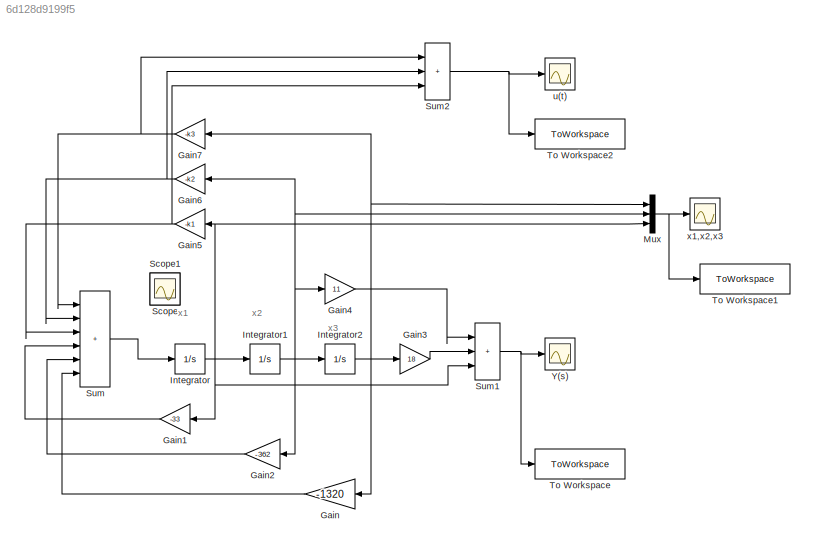
MODEL slx_6d128d9199f5
KIND model
CONFIG AbsTol = auto
CONFIG EnableMultiTasking = off
CONFIG FixedStep = auto
CONFIG MaxStep = auto
CONFIG MinStep = auto
CONFIG RelTol = 1e-3
CONFIG SampleTimeConstraint = Unconstrained
CONFIG SolverName = VariableStepAuto
CONFIG StartTime = 0.0
CONFIG StopTime = 15
BLOCK [Gain] Gain
  Gain = -1320
  NameLocation = top
BLOCK [Gain] Gain1
  Gain = -33
  NameLocation = top
BLOCK [Gain] Gain2
  Gain = -362
  NameLocation = top
BLOCK [Gain] Gain3
  Gain = 18
BLOCK [Gain] Gain4
  Gain = 11
BLOCK [Gain] Gain5
  Gain = -k1
  NameLocation = top
BLOCK [Gain] Gain6
  Gain = -k2
  NameLocation = top
BLOCK [Gain] Gain7
  Gain = -k3
  NameLocation = top
BLOCK [Integrator] Integrator
  InitialCondition = 3
  Ports = [1, 1]
BLOCK [Integrator] Integrator1
  InitialCondition = 2
  Ports = [1, 1]
BLOCK [Integrator] Integrator2
  InitialCondition = -3
  Ports = [1, 1]
BLOCK [Mux] Mux
  DisplayOption = bar
  Inputs = 3
  Ports = [3, 1]
BLOCK [Scope] Scope
  Floating = off
  IOType = viewer
  NumInputPorts = 1
  Ports = []
  ScopeSpecificationString = Simulink.scopes.TimeScopeBlockCfg('CurrentConfiguration', extmgr.ConfigurationSet(extmgr.Configuration('Core','General UI',true),extmgr.Configuration('Core','Source UI',true),extmgr.Configuration('Sources','WiredSimulink',true,'DataLoggingVariableName','ScopeData3'),extmgr.Configuration('Visuals','Time Domain',true,'SerializedDisplays',{struct('MinYLimReal','-4174.18682','MaxYLimReal','1717.6814',...<+1429ch>
BLOCK [Scope] Scope1
  Floating = off
  IOType = viewer
  NumInputPorts = 1
  Ports = []
  ScopeSpecificationString = Simulink.scopes.TimeScopeBlockCfg('CurrentConfiguration', extmgr.ConfigurationSet(extmgr.Configuration('Core','General UI',true),extmgr.Configuration('Core','Source UI',true),extmgr.Configuration('Sources','WiredSimulink',true,'DataLoggingVariableName','ScopeData4'),extmgr.Configuration('Visuals','Time Domain',true,'SerializedDisplays',{struct('MinYLimReal','-3.375','MaxYLimReal','0.375','YLabelRe...<+1387ch>
BLOCK [Sum] Sum
  IconShape = rectangular
  Inputs = |++++++
  Ports = [6, 1]
BLOCK [Sum] Sum1
  IconShape = rectangular
  Inputs = |+++
  Ports = [3, 1]
BLOCK [Sum] Sum2
  IconShape = rectangular
  Inputs = |+++
  Ports = [3, 1]
BLOCK [ToWorkspace] To Workspace
  FixptAsFi = on
  MaxDataPoints = inf
  Ports = [1]
  SampleTime = -1
  SaveFormat = Structure With Time
  VariableName = y1
BLOCK [ToWorkspace] To Workspace1
  FixptAsFi = on
  MaxDataPoints = inf
  Ports = [1]
  SampleTime = -1
  SaveFormat = Structure With Time
  VariableName = x
BLOCK [ToWorkspace] To Workspace2
  FixptAsFi = on
  MaxDataPoints = inf
  Ports = [1]
  SampleTime = -1
  SaveFormat = Structure With Time
  VariableName = u
BLOCK [Scope] Y(s)
  Floating = off
  NumInputPorts = 1
  Ports = [1]
  ScopeSpecificationString = Simulink.scopes.TimeScopeBlockCfg('CurrentConfiguration', extmgr.ConfigurationSet(extmgr.Configuration('Core','General UI',true),extmgr.Configuration('Core','Source UI',true),extmgr.Configuration('Sources','WiredSimulink',true),extmgr.Configuration('Visuals','Time Domain',true,'SerializedDisplays',{struct('MinYLimReal','-33.68886','MaxYLimReal','13.19972','YLabelReal','','MinYLimMag','0.00000','Ma...<+1359ch>
BLOCK [Scope] u(t)
  Floating = off
  NumInputPorts = 1
  Ports = [1]
  ScopeSpecificationString = Simulink.scopes.TimeScopeBlockCfg('CurrentConfiguration', extmgr.ConfigurationSet(extmgr.Configuration('Core','General UI',true),extmgr.Configuration('Core','Source UI',true),extmgr.Configuration('Sources','WiredSimulink',true,'DataLoggingVariableName','ScopeData1'),extmgr.Configuration('Visuals','Time Domain',true,'SerializedDisplays',{struct('MinYLimReal','-696.32162','MaxYLimReal','6191.81351',...<+1427ch>
BLOCK [Scope] x1,x2,x3
  Floating = off
  NumInputPorts = 1
  Ports = [1]
  ScopeSpecificationString = Simulink.scopes.TimeScopeBlockCfg('CurrentConfiguration', extmgr.ConfigurationSet(extmgr.Configuration('Core','General UI',true),extmgr.Configuration('Core','Source UI',true),extmgr.Configuration('Sources','WiredSimulink',true,'DataLoggingVariableName','ScopeData2'),extmgr.Configuration('Visuals','Time Domain',true,'SerializedDisplays',{struct('MinYLimReal','-7.54983','MaxYLimReal','11.63914','YLa...<+1456ch>
ANNOTATION (root): x1
ANNOTATION (root): x2
ANNOTATION (root): x3
LINE Gain1:1 -> Sum:4
LINE Gain2:1 -> Sum:5
LINE Gain3:1 -> Sum1:2
LINE Gain4:1 -> Sum1:1
NET Gain5:1 -> Sum2:3, Sum:3
NET Gain6:1 -> Sum2:2, Sum:2
NET Gain7:1 -> Sum2:1, Sum:1
LINE Gain:1 -> Sum:6
NET Integrator1:1 -> Gain2:1, Gain4:1, Gain6:1, Integrator2:1, Mux:2
NET Integrator2:1 -> Gain3:1, Gain7:1, Gain:1, Mux:1
NET Integrator:1 -> Gain1:1, Gain5:1, Integrator1:1, Mux:3, Sum1:3
NET Mux:1 -> To Workspace1:1, x1,x2,x3:1
NET Sum1:1 -> To Workspace:1, Y(s):1
NET Sum2:1 -> To Workspace2:1, u(t):1
LINE Sum:1 -> Integrator:1
note: NET lines group one-source signal fan-out (src -> all destinations, sorted); 1:1 wires keep LINE
